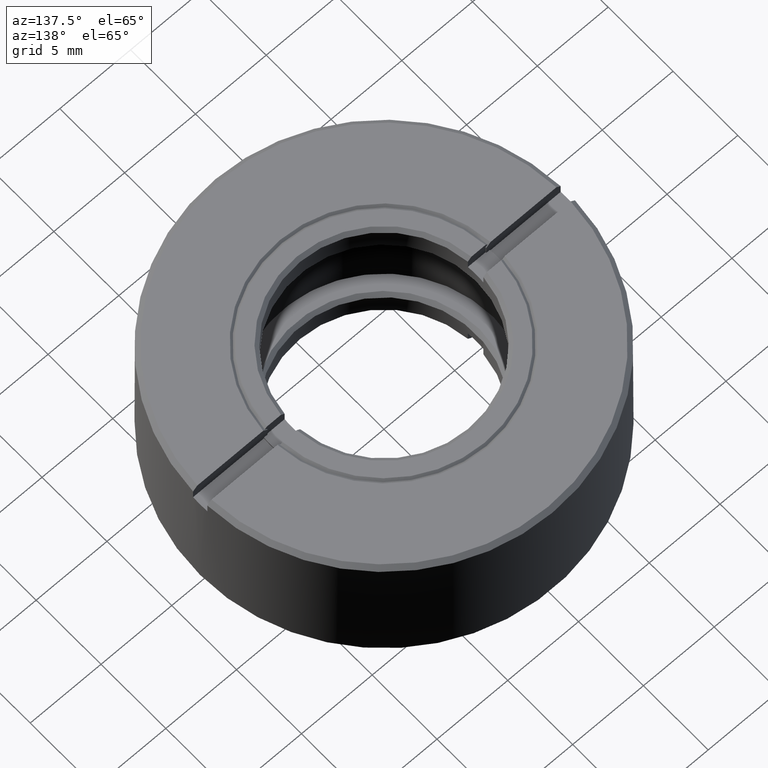
[diagram: clean part render]
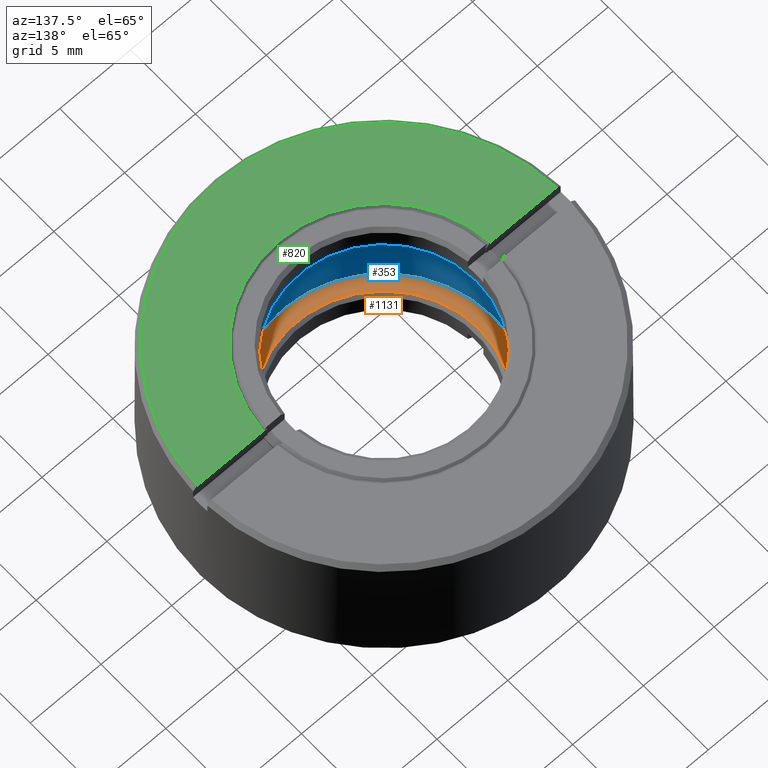
[diagram: same view with three faces highlighted in distinct colors, each labeled with its STEP entity id]
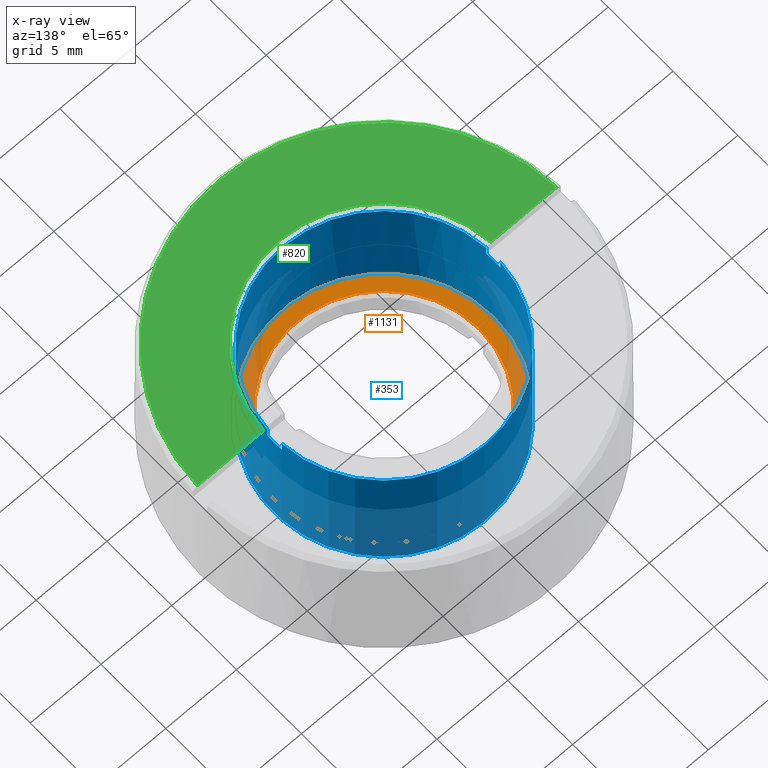
[diagram: x-ray of the same camera — body ghosted, the three highlighted faces saturated]
A machine part, auxiliary view with three faces highlighted in distinct colors.
The next image is the same camera in x-ray (body ghosted, the three faces saturated) — at least one of them is partly hidden behind the body in this view.
Their STEP definitions:

[orange] entity #1131 — the highlighted planar face has unit normal (0, 0, -1).
#66 = CIRCLE ( 'NONE', #1362, 7.749999999999994671 ) ;
#113 = CARTESIAN_POINT ( 'NONE',  ( 6.749999999954070518, 0.000000000000000000, -3.000000000047293724 ) ) ;
#133 = CIRCLE ( 'NONE', #1050, 6.749999999954070518 ) ;
#139 = DIRECTION ( 'NONE',  ( -1.000000000000000000, 0.000000000000000000, 0.000000000000000000 ) ) ;
#233 = CARTESIAN_POINT ( 'NONE',  ( 0.000000000000000000, -7.749999999999994671, -3.000000000000000000 ) ) ;
#247 = CARTESIAN_POINT ( 'NONE',  ( 0.000000000000000000, 0.000000000000000000, -3.000000000000000000 ) ) ;
#343 = CARTESIAN_POINT ( 'NONE',  ( 0.000000000000000000, 3.388131789017245653E-18, -3.000000000000000000 ) ) ;
#378 = DIRECTION ( 'NONE',  ( 1.000000000000000000, 0.000000000000000000, 0.000000000000000000 ) ) ;
#748 = FACE_OUTER_BOUND ( 'NONE', #1535, .T. ) ;
#780 = EDGE_CURVE ( 'NONE', #882, #882, #133, .T. ) ;
#849 = DIRECTION ( 'NONE',  ( 0.000000000000000000, -1.000000000000000000, 0.000000000000000000 ) ) ;
#882 = VERTEX_POINT ( 'NONE', #113 ) ;
#941 = EDGE_CURVE ( 'NONE', #1352, #1352, #66, .T. ) ;
#1003 = CARTESIAN_POINT ( 'NONE',  ( 0.000000000000000000, 0.000000000000000000, -3.000000000047293724 ) ) ;
#1031 = EDGE_LOOP ( 'NONE', ( #1336 ) ) ;
#1050 = AXIS2_PLACEMENT_3D ( 'NONE', #1003, #1500, #378 ) ;
#1061 = ORIENTED_EDGE ( 'NONE', *, *, #941, .F. ) ;
#1102 = FACE_BOUND ( 'NONE', #1031, .T. ) ;
#1131 = ADVANCED_FACE ( 'NONE', ( #1102, #748 ), #1599, .F. ) ;
#1179 = AXIS2_PLACEMENT_3D ( 'NONE', #247, #1480, #139 ) ;
#1336 = ORIENTED_EDGE ( 'NONE', *, *, #780, .F. ) ;
#1352 = VERTEX_POINT ( 'NONE', #233 ) ;
#1362 = AXIS2_PLACEMENT_3D ( 'NONE', #343, #1455, #849 ) ;
#1455 = DIRECTION ( 'NONE',  ( 0.000000000000000000, -1.355252715606880543E-17, -1.000000000000000000 ) ) ;
#1480 = DIRECTION ( 'NONE',  ( 0.000000000000000000, 0.000000000000000000, -1.000000000000000000 ) ) ;
#1500 = DIRECTION ( 'NONE',  ( 0.000000000000000000, 0.000000000000000000, 1.000000000000000000 ) ) ;
#1535 = EDGE_LOOP ( 'NONE', ( #1061 ) ) ;
#1599 = PLANE ( 'NONE',  #1179 ) ;

[blue] entity #353 — the highlighted cylindrical surface (bore or boss wall) has radius 7.75 mm, axis along (-0, -0, 1).
#10 = CARTESIAN_POINT ( 'NONE',  ( -7.750000000000000888, 0.000000000000000000, -4.700000000000001066 ) ) ;
#14 = CARTESIAN_POINT ( 'NONE',  ( -7.730459236035075676, -0.5500000000000000444, 4.000000000000000000 ) ) ;
#17 = EDGE_CURVE ( 'NONE', #903, #173, #1456, .T. ) ;
#40 = EDGE_CURVE ( 'NONE', #1121, #774, #863, .T. ) ;
#62 = VECTOR ( 'NONE', #478, 1000.000000000000000 ) ;
#84 = CARTESIAN_POINT ( 'NONE',  ( -7.730459236035075676, -0.5500000000000000444, 4.699999999999998401 ) ) ;
#143 = CARTESIAN_POINT ( 'NONE',  ( -7.730459236035075676, 0.5500000000000000444, 4.000000000000000000 ) ) ;
#162 = VECTOR ( 'NONE', #395, 1000.000000000000000 ) ;
#173 = VERTEX_POINT ( 'NONE', #778 ) ;
#187 = ORIENTED_EDGE ( 'NONE', *, *, #324, .T. ) ;
#194 = AXIS2_PLACEMENT_3D ( 'NONE', #507, #1477, #631 ) ;
#195 = ORIENTED_EDGE ( 'NONE', *, *, #1533, .F. ) ;
#196 = EDGE_CURVE ( 'NONE', #819, #774, #436, .T. ) ;
#205 = CYLINDRICAL_SURFACE ( 'NONE', #368, 7.750000000000000000 ) ;
#222 = DIRECTION ( 'NONE',  ( 1.000000000000000000, 0.000000000000000000, 0.000000000000000000 ) ) ;
#270 = VERTEX_POINT ( 'NONE', #84 ) ;
#288 = DIRECTION ( 'NONE',  ( -1.000000000000000000, 0.000000000000000000, 0.000000000000000000 ) ) ;
#324 = EDGE_CURVE ( 'NONE', #1121, #270, #1472, .T. ) ;
#326 = VERTEX_POINT ( 'NONE', #1068 ) ;
#339 = ORIENTED_EDGE ( 'NONE', *, *, #933, .T. ) ;
#342 = DIRECTION ( 'NONE',  ( -0.000000000000000000, -0.000000000000000000, 1.000000000000000000 ) ) ;
#345 = EDGE_LOOP ( 'NONE', ( #414 ) ) ;
#353 = ADVANCED_FACE ( 'NONE', ( #1462, #572 ), #205, .F. ) ;
#354 = DIRECTION ( 'NONE',  ( 0.000000000000000000, 0.000000000000000000, -1.000000000000000000 ) ) ;
#368 = AXIS2_PLACEMENT_3D ( 'NONE', #705, #342, #222 ) ;
#395 = DIRECTION ( 'NONE',  ( -0.000000000000000000, 0.000000000000000000, -1.000000000000000000 ) ) ;
#397 = AXIS2_PLACEMENT_3D ( 'NONE', #402, #1038, #288 ) ;
#402 = CARTESIAN_POINT ( 'NONE',  ( 0.000000000000000000, 0.000000000000000000, -4.700000000000001066 ) ) ;
#414 = ORIENTED_EDGE ( 'NONE', *, *, #577, .T. ) ;
#436 = LINE ( 'NONE', #143, #162 ) ;
#459 = CARTESIAN_POINT ( 'NONE',  ( 7.730459236035075676, -0.5500000000000000444, 4.000000000000000000 ) ) ;
#471 = VECTOR ( 'NONE', #807, 1000.000000000000000 ) ;
#478 = DIRECTION ( 'NONE',  ( 0.000000000000000000, -0.000000000000000000, 1.000000000000000000 ) ) ;
#485 = CARTESIAN_POINT ( 'NONE',  ( -7.730459236035075676, 0.5500000000000000444, 4.000000000000000888 ) ) ;
#507 = CARTESIAN_POINT ( 'NONE',  ( 0.000000000000000000, 0.000000000000000000, 4.000000000000000888 ) ) ;
#519 = CARTESIAN_POINT ( 'NONE',  ( 7.730459236035075676, 0.5500000000000000444, 4.000000000000000000 ) ) ;
#524 = AXIS2_PLACEMENT_3D ( 'NONE', #1059, #1556, #650 ) ;
#567 = DIRECTION ( 'NONE',  ( -0.000000000000000000, 0.000000000000000000, 1.000000000000000000 ) ) ;
#572 = FACE_OUTER_BOUND ( 'NONE', #1369, .T. ) ;
#577 = EDGE_CURVE ( 'NONE', #854, #854, #894, .T. ) ;
#585 = DIRECTION ( 'NONE',  ( 1.000000000000000000, 9.769962616701375978E-15, 0.000000000000000000 ) ) ;
#631 = DIRECTION ( 'NONE',  ( 1.000000000000000000, 0.000000000000000000, 0.000000000000000000 ) ) ;
#650 = DIRECTION ( 'NONE',  ( 1.000000000000000000, 0.000000000000000000, 0.000000000000000000 ) ) ;
#656 = CIRCLE ( 'NONE', #194, 7.750000000000000000 ) ;
#690 = LINE ( 'NONE', #459, #471 ) ;
#705 = CARTESIAN_POINT ( 'NONE',  ( 0.000000000000000000, 0.000000000000000000, -5.000000000000000000 ) ) ;
#718 = ORIENTED_EDGE ( 'NONE', *, *, #1451, .T. ) ;
#723 = DIRECTION ( 'NONE',  ( 0.000000000000000000, 0.000000000000000000, 1.000000000000000000 ) ) ;
#774 = VERTEX_POINT ( 'NONE', #485 ) ;
#778 = CARTESIAN_POINT ( 'NONE',  ( 7.730459236035075676, 0.5500000000000000444, 4.699999999999998401 ) ) ;
#807 = DIRECTION ( 'NONE',  ( 0.000000000000000000, -0.000000000000000000, -1.000000000000000000 ) ) ;
#819 = VERTEX_POINT ( 'NONE', #1538 ) ;
#840 = CIRCLE ( 'NONE', #947, 7.750000000000000000 ) ;
#854 = VERTEX_POINT ( 'NONE', #10 ) ;
#863 = CIRCLE ( 'NONE', #1071, 7.750000000000000000 ) ;
#894 = CIRCLE ( 'NONE', #397, 7.750000000000000888 ) ;
#903 = VERTEX_POINT ( 'NONE', #519 ) ;
#907 = EDGE_CURVE ( 'NONE', #270, #1113, #1002, .T. ) ;
#933 = EDGE_CURVE ( 'NONE', #173, #819, #840, .T. ) ;
#947 = AXIS2_PLACEMENT_3D ( 'NONE', #960, #723, #1589 ) ;
#950 = CARTESIAN_POINT ( 'NONE',  ( -7.730459236035075676, -0.5500000000000000444, 4.000000000000000000 ) ) ;
#960 = CARTESIAN_POINT ( 'NONE',  ( 0.000000000000000000, 0.000000000000000000, 4.699999999999998401 ) ) ;
#1002 = CIRCLE ( 'NONE', #524, 7.750000000000000000 ) ;
#1037 = ORIENTED_EDGE ( 'NONE', *, *, #17, .T. ) ;
#1038 = DIRECTION ( 'NONE',  ( -0.000000000000000000, -0.000000000000000000, -1.000000000000000000 ) ) ;
#1059 = CARTESIAN_POINT ( 'NONE',  ( 0.000000000000000000, 0.000000000000000000, 4.699999999999998401 ) ) ;
#1068 = CARTESIAN_POINT ( 'NONE',  ( 7.730459236035075676, -0.5500000000000000444, 4.000000000000000000 ) ) ;
#1071 = AXIS2_PLACEMENT_3D ( 'NONE', #1609, #354, #585 ) ;
#1113 = VERTEX_POINT ( 'NONE', #1124 ) ;
#1121 = VERTEX_POINT ( 'NONE', #14 ) ;
#1124 = CARTESIAN_POINT ( 'NONE',  ( 7.730459236035075676, -0.5500000000000000444, 4.699999999999998401 ) ) ;
#1345 = ORIENTED_EDGE ( 'NONE', *, *, #40, .F. ) ;
#1356 = CARTESIAN_POINT ( 'NONE',  ( 7.730459236035075676, 0.5500000000000000444, 4.000000000000000000 ) ) ;
#1369 = EDGE_LOOP ( 'NONE', ( #718, #195, #1037, #339, #1534, #1345, #187, #1502 ) ) ;
#1440 = VECTOR ( 'NONE', #567, 1000.000000000000000 ) ;
#1451 = EDGE_CURVE ( 'NONE', #1113, #326, #690, .T. ) ;
#1456 = LINE ( 'NONE', #1356, #62 ) ;
#1462 = FACE_OUTER_BOUND ( 'NONE', #345, .T. ) ;
#1472 = LINE ( 'NONE', #950, #1440 ) ;
#1477 = DIRECTION ( 'NONE',  ( 0.000000000000000000, 0.000000000000000000, -1.000000000000000000 ) ) ;
#1502 = ORIENTED_EDGE ( 'NONE', *, *, #907, .T. ) ;
#1533 = EDGE_CURVE ( 'NONE', #903, #326, #656, .T. ) ;
#1534 = ORIENTED_EDGE ( 'NONE', *, *, #196, .T. ) ;
#1538 = CARTESIAN_POINT ( 'NONE',  ( -7.730459236035075676, 0.5500000000000000444, 4.699999999999998401 ) ) ;
#1556 = DIRECTION ( 'NONE',  ( 0.000000000000000000, 0.000000000000000000, 1.000000000000000000 ) ) ;
#1589 = DIRECTION ( 'NONE',  ( 1.000000000000000000, 0.000000000000000000, 0.000000000000000000 ) ) ;
#1609 = CARTESIAN_POINT ( 'NONE',  ( 0.000000000000000000, 0.000000000000000000, 4.000000000000000888 ) ) ;

[green] entity #820 — the highlighted planar face has unit normal (0, 0, 1).
#45 = VERTEX_POINT ( 'NONE', #844 ) ;
#55 = EDGE_CURVE ( 'NONE', #985, #45, #1027, .T. ) ;
#103 = ORIENTED_EDGE ( 'NONE', *, *, #55, .T. ) ;
#160 = CARTESIAN_POINT ( 'NONE',  ( 0.000000000000000000, -0.5500000000000000444, 5.000000000000000000 ) ) ;
#192 = AXIS2_PLACEMENT_3D ( 'NONE', #1167, #1162, #1404 ) ;
#198 = CARTESIAN_POINT ( 'NONE',  ( -12.68808496188450441, -0.5500000000000000444, 5.000000000000002665 ) ) ;
#215 = EDGE_CURVE ( 'NONE', #45, #1412, #935, .T. ) ;
#239 = CIRCLE ( 'NONE', #1204, 12.69999999999998863 ) ;
#240 = DIRECTION ( 'NONE',  ( -0.000000000000000000, 0.000000000000000000, -1.000000000000000000 ) ) ;
#307 = PLANE ( 'NONE',  #192 ) ;
#357 = ORIENTED_EDGE ( 'NONE', *, *, #566, .F. ) ;
#566 = EDGE_CURVE ( 'NONE', #890, #1412, #239, .T. ) ;
#641 = CARTESIAN_POINT ( 'NONE',  ( 0.000000000000000000, 0.000000000000000000, 5.000000000000001776 ) ) ;
#651 = DIRECTION ( 'NONE',  ( -1.000000000000000000, -0.000000000000000000, 0.000000000000000000 ) ) ;
#669 = FACE_OUTER_BOUND ( 'NONE', #1430, .T. ) ;
#692 = CARTESIAN_POINT ( 'NONE',  ( 8.031189202104508595, -0.5500000000000000444, 5.000000000000001776 ) ) ;
#786 = AXIS2_PLACEMENT_3D ( 'NONE', #1350, #240, #1483 ) ;
#820 = ADVANCED_FACE ( 'NONE', ( #669 ), #307, .T. ) ;
#844 = CARTESIAN_POINT ( 'NONE',  ( -8.031189202104508595, -0.5500000000000000444, 5.000000000000000888 ) ) ;
#856 = LINE ( 'NONE', #1248, #1076 ) ;
#890 = VERTEX_POINT ( 'NONE', #1154 ) ;
#893 = VECTOR ( 'NONE', #651, 1000.000000000000000 ) ;
#935 = LINE ( 'NONE', #160, #893 ) ;
#985 = VERTEX_POINT ( 'NONE', #692 ) ;
#1024 = DIRECTION ( 'NONE',  ( 0.000000000000000000, 0.000000000000000000, -1.000000000000000000 ) ) ;
#1027 = CIRCLE ( 'NONE', #786, 8.050000000000002487 ) ;
#1032 = ORIENTED_EDGE ( 'NONE', *, *, #1182, .T. ) ;
#1072 = ORIENTED_EDGE ( 'NONE', *, *, #215, .T. ) ;
#1076 = VECTOR ( 'NONE', #1513, 1000.000000000000000 ) ;
#1154 = CARTESIAN_POINT ( 'NONE',  ( 12.68808496188450441, -0.5500000000000000444, 5.000000000000001776 ) ) ;
#1162 = DIRECTION ( 'NONE',  ( 0.000000000000000000, 0.000000000000000000, 1.000000000000000000 ) ) ;
#1167 = CARTESIAN_POINT ( 'NONE',  ( 0.000000000000000000, 0.000000000000000000, 5.000000000000000000 ) ) ;
#1182 = EDGE_CURVE ( 'NONE', #890, #985, #856, .T. ) ;
#1204 = AXIS2_PLACEMENT_3D ( 'NONE', #641, #1024, #1294 ) ;
#1248 = CARTESIAN_POINT ( 'NONE',  ( 0.000000000000000000, -0.5500000000000000444, 5.000000000000000000 ) ) ;
#1294 = DIRECTION ( 'NONE',  ( -1.000000000000000000, 0.000000000000000000, 0.000000000000000000 ) ) ;
#1350 = CARTESIAN_POINT ( 'NONE',  ( 0.000000000000000000, 0.000000000000000000, 5.000000000000001776 ) ) ;
#1404 = DIRECTION ( 'NONE',  ( 1.000000000000000000, 0.000000000000000000, -0.000000000000000000 ) ) ;
#1412 = VERTEX_POINT ( 'NONE', #198 ) ;
#1430 = EDGE_LOOP ( 'NONE', ( #1032, #103, #1072, #357 ) ) ;
#1483 = DIRECTION ( 'NONE',  ( 1.000000000000000000, 0.000000000000000000, 0.000000000000000000 ) ) ;
#1513 = DIRECTION ( 'NONE',  ( -1.000000000000000000, -0.000000000000000000, 0.000000000000000000 ) ) ;